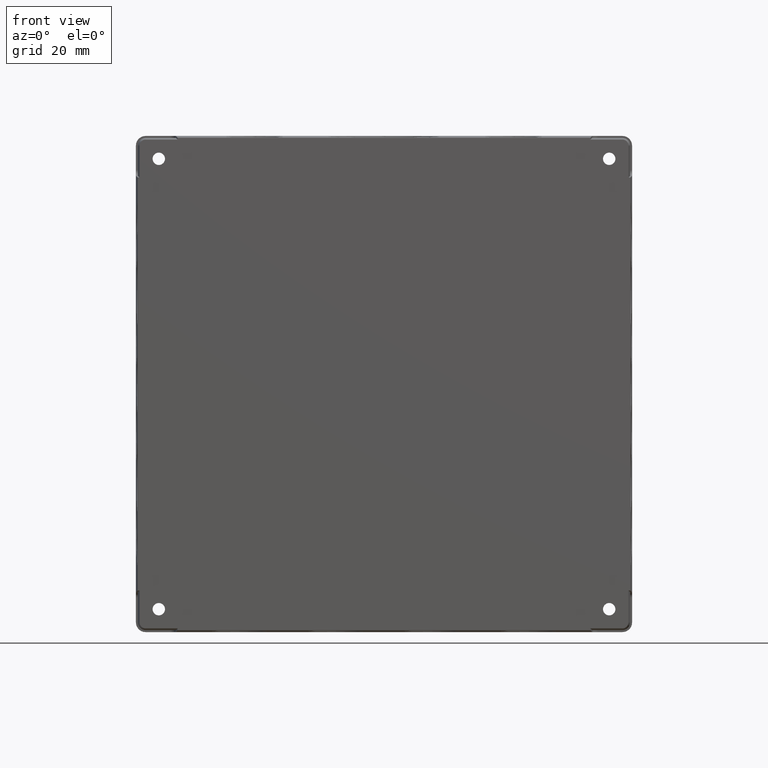
[diagram: clean part render]
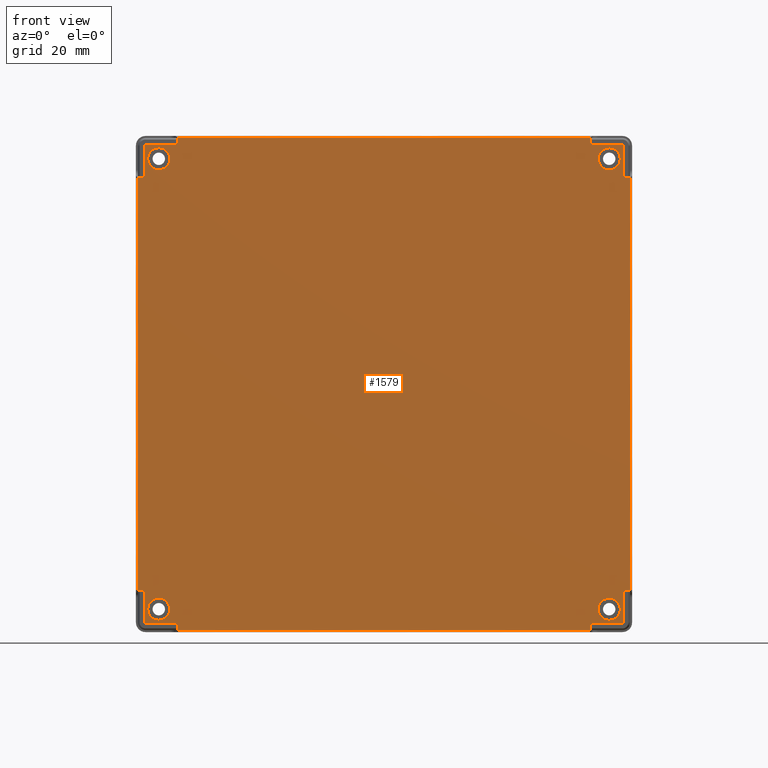
[diagram: same view with one face highlighted and labeled with its STEP entity id]
A machine part, front view. The second image highlights one B-rep face of the part: STEP entity #1579.
In plain terms, the highlighted planar face has unit normal (0, -1, 0).
Its self-contained STEP definition (entity closure, byte-faithful):
#14 = CARTESIAN_POINT ( 'NONE',  ( 88.73911925464683700, -74.00000000000000000, -74.73911925464686600 ) ) ;
#18 = VERTEX_POINT ( 'NONE', #11481 ) ;
#44 = VERTEX_POINT ( 'NONE', #9595 ) ;
#87 = DIRECTION ( 'NONE',  ( -1.000000000000000000, 0.0000000000000000000, 2.523234146875351000E-015 ) ) ;
#95 = EDGE_CURVE ( 'NONE', #3301, #5149, #2571, .T. ) ;
#165 = DIRECTION ( 'NONE',  ( 0.0000000000000000000, -1.000000000000000000, 0.0000000000000000000 ) ) ;
#243 = ORIENTED_EDGE ( 'NONE', *, *, #3337, .F. ) ;
#268 = LINE ( 'NONE', #8691, #2051 ) ;
#290 = LINE ( 'NONE', #6791, #2974 ) ;
#311 = EDGE_CURVE ( 'NONE', #18, #5732, #5859, .T. ) ;
#358 = ORIENTED_EDGE ( 'NONE', *, *, #714, .F. ) ;
#444 = DIRECTION ( 'NONE',  ( -0.0000000000000000000, 1.000000000000000000, -0.0000000000000000000 ) ) ;
#450 = CIRCLE ( 'NONE', #11650, 4.000000000000003600 ) ;
#522 = CARTESIAN_POINT ( 'NONE',  ( 86.54999999999998300, -74.00000000000000000, 86.55000000000001100 ) ) ;
#559 = CARTESIAN_POINT ( 'NONE',  ( 89.40421178348385900, -74.00000000000000000, 74.93911925464686900 ) ) ;
#570 = LINE ( 'NONE', #8277, #11546 ) ;
#574 = LINE ( 'NONE', #9454, #7950 ) ;
#576 = LINE ( 'NONE', #4770, #6271 ) ;
#607 = VECTOR ( 'NONE', #8042, 1000.000000000000000 ) ;
#610 = AXIS2_PLACEMENT_3D ( 'NONE', #8954, #165, #10828 ) ;
#620 = EDGE_CURVE ( 'NONE', #8422, #7485, #5249, .T. ) ;
#631 = DIRECTION ( 'NONE',  ( -0.0000000000000000000, -0.0000000000000000000, -1.000000000000000000 ) ) ;
#638 = CARTESIAN_POINT ( 'NONE',  ( 86.73911925464685200, -74.00000000000000000, -86.55000000000001100 ) ) ;
#693 = VERTEX_POINT ( 'NONE', #10960 ) ;
#697 = LINE ( 'NONE', #8411, #2932 ) ;
#714 = EDGE_CURVE ( 'NONE', #1204, #2340, #6311, .T. ) ;
#747 = DIRECTION ( 'NONE',  ( 1.000000000000000000, 0.0000000000000000000, 2.350000496495478200E-015 ) ) ;
#751 = CARTESIAN_POINT ( 'NONE',  ( -74.73911925464682300, -74.00000000000000000, -88.73911925464686600 ) ) ;
#758 = LINE ( 'NONE', #9892, #11287 ) ;
#771 = ORIENTED_EDGE ( 'NONE', *, *, #12160, .F. ) ;
#787 = EDGE_CURVE ( 'NONE', #2482, #12026, #758, .T. ) ;
#818 = CARTESIAN_POINT ( 'NONE',  ( -74.93911925464681200, -74.00000000000000000, 88.73911925464688000 ) ) ;
#868 = ORIENTED_EDGE ( 'NONE', *, *, #6827, .F. ) ;
#881 = CARTESIAN_POINT ( 'NONE',  ( -81.74999999999997200, -74.00000000000000000, 81.75000000000002800 ) ) ;
#892 = DIRECTION ( 'NONE',  ( 1.000000000000000000, -0.0000000000000000000, 2.523234146875351000E-015 ) ) ;
#945 = LINE ( 'NONE', #8362, #4698 ) ;
#1002 = VERTEX_POINT ( 'NONE', #10293 ) ;
#1004 = VERTEX_POINT ( 'NONE', #2500 ) ;
#1040 = VERTEX_POINT ( 'NONE', #7641 ) ;
#1053 = VERTEX_POINT ( 'NONE', #11658 ) ;
#1089 = EDGE_CURVE ( 'NONE', #6786, #11872, #2388, .T. ) ;
#1094 = VERTEX_POINT ( 'NONE', #2736 ) ;
#1138 = DIRECTION ( 'NONE',  ( -1.000000000000000000, -0.0000000000000000000, -1.175000248247743200E-015 ) ) ;
#1166 = CARTESIAN_POINT ( 'NONE',  ( 86.54999999999998300, -74.00000000000000000, 86.73911925464690900 ) ) ;
#1204 = VERTEX_POINT ( 'NONE', #9976 ) ;
#1239 = CARTESIAN_POINT ( 'NONE',  ( -86.73911925464683700, -74.00000000000000000, -74.73911925464686600 ) ) ;
#1252 = VECTOR ( 'NONE', #8424, 1000.000000000000000 ) ;
#1298 = VECTOR ( 'NONE', #6593, 1000.000000000000000 ) ;
#1328 = VERTEX_POINT ( 'NONE', #12109 ) ;
#1517 = DIRECTION ( 'NONE',  ( 0.0000000000000000000, 0.0000000000000000000, 1.000000000000000000 ) ) ;
#1522 = CARTESIAN_POINT ( 'NONE',  ( -86.55000000000002600, -74.00000000000000000, 88.73911925464689400 ) ) ;
#1568 = EDGE_CURVE ( 'NONE', #693, #4015, #8275, .T. ) ;
#1579 = ADVANCED_FACE ( 'NONE', ( #7664, #8415, #5073, #3251, #2373 ), #7702, .T. ) ;
#1627 = VECTOR ( 'NONE', #8460, 1000.000000000000000 ) ;
#1665 = VERTEX_POINT ( 'NONE', #11387 ) ;
#1713 = VERTEX_POINT ( 'NONE', #11424 ) ;
#1749 = EDGE_CURVE ( 'NONE', #8174, #3700, #9159, .T. ) ;
#1773 = AXIS2_PLACEMENT_3D ( 'NONE', #8304, #2562, #11228 ) ;
#1795 = EDGE_LOOP ( 'NONE', ( #5564, #8465 ) ) ;
#1815 = ORIENTED_EDGE ( 'NONE', *, *, #2259, .F. ) ;
#1857 = DIRECTION ( 'NONE',  ( 0.0000000000000000000, 0.0000000000000000000, -1.000000000000000000 ) ) ;
#1900 = VECTOR ( 'NONE', #7553, 1000.000000000000000 ) ;
#1913 = LINE ( 'NONE', #8922, #10362 ) ;
#1961 = ORIENTED_EDGE ( 'NONE', *, *, #10335, .F. ) ;
#1975 = ORIENTED_EDGE ( 'NONE', *, *, #5195, .F. ) ;
#2020 = VERTEX_POINT ( 'NONE', #1239 ) ;
#2051 = VECTOR ( 'NONE', #8886, 1000.000000000000000 ) ;
#2061 = VECTOR ( 'NONE', #631, 1000.000000000000000 ) ;
#2084 = LINE ( 'NONE', #7449, #1627 ) ;
#2121 = ORIENTED_EDGE ( 'NONE', *, *, #10544, .F. ) ;
#2130 = EDGE_CURVE ( 'NONE', #10771, #1004, #10498, .T. ) ;
#2138 = EDGE_CURVE ( 'NONE', #1053, #11587, #5514, .T. ) ;
#2197 = AXIS2_PLACEMENT_3D ( 'NONE', #10440, #5623, #6596 ) ;
#2259 = EDGE_CURVE ( 'NONE', #1713, #2482, #268, .T. ) ;
#2340 = VERTEX_POINT ( 'NONE', #7891 ) ;
#2346 = CARTESIAN_POINT ( 'NONE',  ( -81.74999999999998600, -74.00000000000000000, -85.75000000000000000 ) ) ;
#2348 = DIRECTION ( 'NONE',  ( 0.0000000000000000000, -1.000000000000000000, 0.0000000000000000000 ) ) ;
#2373 = FACE_OUTER_BOUND ( 'NONE', #9206, .T. ) ;
#2388 = LINE ( 'NONE', #3647, #12317 ) ;
#2456 = VERTEX_POINT ( 'NONE', #559 ) ;
#2482 = VERTEX_POINT ( 'NONE', #4226 ) ;
#2500 = CARTESIAN_POINT ( 'NONE',  ( -86.54999999999998300, -74.00000000000000000, 86.73911925464686600 ) ) ;
#2562 = DIRECTION ( 'NONE',  ( 0.0000000000000000000, -1.000000000000000000, 0.0000000000000000000 ) ) ;
#2571 = LINE ( 'NONE', #1166, #10694 ) ;
#2575 = DIRECTION ( 'NONE',  ( -0.0000000000000000000, 1.000000000000000000, -0.0000000000000000000 ) ) ;
#2604 = CARTESIAN_POINT ( 'NONE',  ( 88.73911925464683700, -74.00000000000000000, -74.93911925464686900 ) ) ;
#2635 = EDGE_CURVE ( 'NONE', #1094, #7485, #6868, .T. ) ;
#2652 = DIRECTION ( 'NONE',  ( 0.0000000000000000000, 0.0000000000000000000, -1.000000000000000000 ) ) ;
#2736 = CARTESIAN_POINT ( 'NONE',  ( -88.73911925464683700, -74.00000000000000000, 74.93911925464689700 ) ) ;
#2744 = CARTESIAN_POINT ( 'NONE',  ( -74.93911925464686900, -74.00000000000000000, -100.3499999999999900 ) ) ;
#2753 = DIRECTION ( 'NONE',  ( -1.000000000000000000, -0.0000000000000000000, -0.0000000000000000000 ) ) ;
#2759 = DIRECTION ( 'NONE',  ( 0.0000000000000000000, -1.000000000000000000, 0.0000000000000000000 ) ) ;
#2770 = DIRECTION ( 'NONE',  ( 0.0000000000000000000, 0.0000000000000000000, -1.000000000000000000 ) ) ;
#2878 = EDGE_CURVE ( 'NONE', #2020, #10049, #697, .T. ) ;
#2911 = VECTOR ( 'NONE', #747, 1000.000000000000000 ) ;
#2926 = CARTESIAN_POINT ( 'NONE',  ( 88.73911925464683700, -74.00000000000000000, -74.73911925464686600 ) ) ;
#2932 = VECTOR ( 'NONE', #2753, 1000.000000000000000 ) ;
#2974 = VECTOR ( 'NONE', #5974, 1000.000000000000000 ) ;
#3010 = CARTESIAN_POINT ( 'NONE',  ( -86.73911925464682300, -74.00000000000000000, 86.55000000000001100 ) ) ;
#3153 = CARTESIAN_POINT ( 'NONE',  ( -86.54999999999961300, -74.00000000000000000, 74.93911925464729500 ) ) ;
#3161 = ORIENTED_EDGE ( 'NONE', *, *, #1749, .F. ) ;
#3194 = ORIENTED_EDGE ( 'NONE', *, *, #10873, .F. ) ;
#3251 = FACE_BOUND ( 'NONE', #11537, .T. ) ;
#3268 = CARTESIAN_POINT ( 'NONE',  ( -86.54999999999995500, -74.00000000000000000, 86.55000000000004000 ) ) ;
#3301 = VERTEX_POINT ( 'NONE', #10409 ) ;
#3337 = EDGE_CURVE ( 'NONE', #11500, #6992, #10178, .T. ) ;
#3354 = DIRECTION ( 'NONE',  ( 0.0000000000000000000, -1.000000000000000000, 0.0000000000000000000 ) ) ;
#3429 = DIRECTION ( 'NONE',  ( -0.0000000000000000000, -0.0000000000000000000, 1.000000000000000000 ) ) ;
#3446 = EDGE_LOOP ( 'NONE', ( #1961, #358 ) ) ;
#3460 = CIRCLE ( 'NONE', #6019, 0.1891192546468606400 ) ;
#3522 = EDGE_CURVE ( 'NONE', #10535, #11510, #5019, .T. ) ;
#3547 = LINE ( 'NONE', #9815, #10939 ) ;
#3575 = DIRECTION ( 'NONE',  ( 0.0000000000000000000, 0.0000000000000000000, 1.000000000000000000 ) ) ;
#3623 = CARTESIAN_POINT ( 'NONE',  ( -74.93911925464686900, -74.00000000000000000, -89.40421178348384500 ) ) ;
#3647 = CARTESIAN_POINT ( 'NONE',  ( 86.54999999999995500, -74.00000000000000000, -74.93911925464688300 ) ) ;
#3652 = CARTESIAN_POINT ( 'NONE',  ( 86.55000000000002600, -74.00000000000000000, 88.73911925464689400 ) ) ;
#3700 = VERTEX_POINT ( 'NONE', #11492 ) ;
#3732 = CARTESIAN_POINT ( 'NONE',  ( 74.93911925464682600, -74.00000000000000000, -88.73911925464686600 ) ) ;
#3772 = DIRECTION ( 'NONE',  ( 1.000000000000000000, -0.0000000000000000000, -2.350000496495478200E-015 ) ) ;
#3891 = CIRCLE ( 'NONE', #12366, 0.1891192546468745100 ) ;
#3982 = DIRECTION ( 'NONE',  ( -1.000000000000000000, 0.0000000000000000000, 1.175000248247743200E-015 ) ) ;
#4015 = VERTEX_POINT ( 'NONE', #9885 ) ;
#4048 = VERTEX_POINT ( 'NONE', #12102 ) ;
#4158 = CIRCLE ( 'NONE', #7341, 4.000000000000003600 ) ;
#4159 = CARTESIAN_POINT ( 'NONE',  ( 74.73911925464682300, -74.00000000000000000, -88.73911925464686600 ) ) ;
#4162 = DIRECTION ( 'NONE',  ( 1.000000000000000000, -0.0000000000000000000, 2.350000496495486400E-015 ) ) ;
#4226 = CARTESIAN_POINT ( 'NONE',  ( 86.73911925464683700, -74.00000000000000000, 74.73911925464686600 ) ) ;
#4228 = ORIENTED_EDGE ( 'NONE', *, *, #1089, .T. ) ;
#4289 = AXIS2_PLACEMENT_3D ( 'NONE', #6320, #6410, #5433 ) ;
#4292 = DIRECTION ( 'NONE',  ( 0.0000000000000000000, 0.0000000000000000000, 1.000000000000000000 ) ) ;
#4302 = ORIENTED_EDGE ( 'NONE', *, *, #7510, .F. ) ;
#4308 = CARTESIAN_POINT ( 'NONE',  ( -86.55000000000001100, -74.00000000000000000, 89.40421178348384500 ) ) ;
#4367 = DIRECTION ( 'NONE',  ( 0.0000000000000000000, 0.0000000000000000000, -1.000000000000000000 ) ) ;
#4392 = CARTESIAN_POINT ( 'NONE',  ( 74.93911925464682600, -74.00000000000000000, -86.54999999999998300 ) ) ;
#4441 = DIRECTION ( 'NONE',  ( 4.700000992991000500E-015, -0.0000000000000000000, -1.000000000000000000 ) ) ;
#4564 = CARTESIAN_POINT ( 'NONE',  ( -88.73911925464683700, -74.00000000000000000, 74.73911925464686600 ) ) ;
#4595 = VECTOR ( 'NONE', #3772, 1000.000000000000000 ) ;
#4632 = ORIENTED_EDGE ( 'NONE', *, *, #12471, .F. ) ;
#4654 = EDGE_CURVE ( 'NONE', #10688, #1040, #5306, .T. ) ;
#4692 = ORIENTED_EDGE ( 'NONE', *, *, #3522, .F. ) ;
#4698 = VECTOR ( 'NONE', #11284, 1000.000000000000000 ) ;
#4764 = LINE ( 'NONE', #12332, #1900 ) ;
#4770 = CARTESIAN_POINT ( 'NONE',  ( -86.54999999999998300, -74.00000000000000000, -74.93911925464685500 ) ) ;
#4783 = DIRECTION ( 'NONE',  ( -1.000000000000000000, 0.0000000000000000000, 0.0000000000000000000 ) ) ;
#4798 = LINE ( 'NONE', #6984, #607 ) ;
#4812 = VECTOR ( 'NONE', #9962, 1000.000000000000000 ) ;
#4927 = AXIS2_PLACEMENT_3D ( 'NONE', #881, #11399, #2770 ) ;
#4964 = VECTOR ( 'NONE', #1857, 1000.000000000000000 ) ;
#4972 = ORIENTED_EDGE ( 'NONE', *, *, #9982, .F. ) ;
#5019 = CIRCLE ( 'NONE', #11311, 0.1891192546468606400 ) ;
#5073 = FACE_BOUND ( 'NONE', #1795, .T. ) ;
#5095 = ORIENTED_EDGE ( 'NONE', *, *, #5878, .F. ) ;
#5149 = VERTEX_POINT ( 'NONE', #10331 ) ;
#5188 = CARTESIAN_POINT ( 'NONE',  ( -86.54999999999998300, -74.00000000000000000, 86.73911925464689400 ) ) ;
#5195 = EDGE_CURVE ( 'NONE', #11587, #7476, #945, .T. ) ;
#5224 = EDGE_CURVE ( 'NONE', #11500, #11787, #6974, .T. ) ;
#5239 = CARTESIAN_POINT ( 'NONE',  ( -81.74999999999997200, -74.00000000000000000, 81.75000000000002800 ) ) ;
#5249 = LINE ( 'NONE', #10306, #8891 ) ;
#5306 = CIRCLE ( 'NONE', #4289, 3.999999999999976000 ) ;
#5351 = VECTOR ( 'NONE', #11952, 1000.000000000000000 ) ;
#5433 = DIRECTION ( 'NONE',  ( 0.0000000000000000000, 0.0000000000000000000, -1.000000000000000000 ) ) ;
#5514 = LINE ( 'NONE', #1522, #5351 ) ;
#5564 = ORIENTED_EDGE ( 'NONE', *, *, #6177, .F. ) ;
#5623 = DIRECTION ( 'NONE',  ( 0.0000000000000000000, -1.000000000000000000, 0.0000000000000000000 ) ) ;
#5681 = DIRECTION ( 'NONE',  ( 0.0000000000000000000, 0.0000000000000000000, -1.000000000000000000 ) ) ;
#5732 = VERTEX_POINT ( 'NONE', #638 ) ;
#5820 = LINE ( 'NONE', #8260, #2061 ) ;
#5859 = LINE ( 'NONE', #7958, #4812 ) ;
#5868 = LINE ( 'NONE', #2744, #4964 ) ;
#5873 = AXIS2_PLACEMENT_3D ( 'NONE', #9098, #2348, #11011 ) ;
#5878 = EDGE_CURVE ( 'NONE', #11343, #2456, #7645, .T. ) ;
#5974 = DIRECTION ( 'NONE',  ( 4.700000992991000500E-015, 0.0000000000000000000, 1.000000000000000000 ) ) ;
#6013 = EDGE_LOOP ( 'NONE', ( #9577, #4632 ) ) ;
#6019 = AXIS2_PLACEMENT_3D ( 'NONE', #11197, #6351, #1517 ) ;
#6040 = VECTOR ( 'NONE', #8569, 1000.000000000000000 ) ;
#6177 = EDGE_CURVE ( 'NONE', #10933, #7567, #10497, .T. ) ;
#6221 = DIRECTION ( 'NONE',  ( 0.0000000000000000000, 0.0000000000000000000, -1.000000000000000000 ) ) ;
#6269 = LINE ( 'NONE', #14, #7198 ) ;
#6271 = VECTOR ( 'NONE', #87, 1000.000000000000000 ) ;
#6295 = VERTEX_POINT ( 'NONE', #3732 ) ;
#6311 = CIRCLE ( 'NONE', #5873, 4.000000000000003600 ) ;
#6320 = CARTESIAN_POINT ( 'NONE',  ( 81.74999999999998600, -74.00000000000000000, -81.75000000000000000 ) ) ;
#6350 = CIRCLE ( 'NONE', #610, 3.999999999999989800 ) ;
#6351 = DIRECTION ( 'NONE',  ( -0.0000000000000000000, 1.000000000000000000, -0.0000000000000000000 ) ) ;
#6410 = DIRECTION ( 'NONE',  ( 0.0000000000000000000, -1.000000000000000000, 0.0000000000000000000 ) ) ;
#6416 = EDGE_CURVE ( 'NONE', #8943, #6295, #7018, .T. ) ;
#6428 = ORIENTED_EDGE ( 'NONE', *, *, #95, .F. ) ;
#6502 = ORIENTED_EDGE ( 'NONE', *, *, #7801, .F. ) ;
#6569 = CARTESIAN_POINT ( 'NONE',  ( 89.40421178348384500, -74.00000000000000000, -86.54999999999998300 ) ) ;
#6576 = CARTESIAN_POINT ( 'NONE',  ( -89.40421178348385900, -74.00000000000000000, -74.93911925464684000 ) ) ;
#6593 = DIRECTION ( 'NONE',  ( -1.000000000000000000, 0.0000000000000000000, -2.523234146875351000E-015 ) ) ;
#6596 = DIRECTION ( 'NONE',  ( 0.0000000000000000000, -0.0000000000000000000, -1.000000000000000000 ) ) ;
#6635 = CARTESIAN_POINT ( 'NONE',  ( -89.34999999999992300, -74.00000000000000000, 74.93911925464689700 ) ) ;
#6667 = VECTOR ( 'NONE', #9392, 1000.000000000000000 ) ;
#6786 = VERTEX_POINT ( 'NONE', #2604 ) ;
#6791 = CARTESIAN_POINT ( 'NONE',  ( 88.73911925464683700, -74.00000000000000000, 74.73911925464686600 ) ) ;
#6827 = EDGE_CURVE ( 'NONE', #1040, #10688, #6852, .T. ) ;
#6830 = ORIENTED_EDGE ( 'NONE', *, *, #12230, .F. ) ;
#6852 = CIRCLE ( 'NONE', #1773, 3.999999999999976000 ) ;
#6868 = LINE ( 'NONE', #6635, #1298 ) ;
#6894 = EDGE_CURVE ( 'NONE', #1094, #1665, #11222, .T. ) ;
#6974 = LINE ( 'NONE', #10496, #6040 ) ;
#6984 = CARTESIAN_POINT ( 'NONE',  ( -74.73911925464682300, -74.00000000000000000, 88.73911925464686600 ) ) ;
#6992 = VERTEX_POINT ( 'NONE', #12272 ) ;
#7008 = DIRECTION ( 'NONE',  ( 1.000000000000000000, 0.0000000000000000000, -2.523234146875351000E-015 ) ) ;
#7018 = LINE ( 'NONE', #7468, #4595 ) ;
#7050 = VECTOR ( 'NONE', #1138, 1000.000000000000000 ) ;
#7060 = CARTESIAN_POINT ( 'NONE',  ( -74.93911925464686900, -74.00000000000000000, -88.73911925464685200 ) ) ;
#7135 = LINE ( 'NONE', #5188, #1252 ) ;
#7165 = DIRECTION ( 'NONE',  ( -0.0000000000000000000, 1.000000000000000000, -0.0000000000000000000 ) ) ;
#7184 = CARTESIAN_POINT ( 'NONE',  ( 74.93911925464684000, -74.00000000000000000, 89.40421178348384500 ) ) ;
#7198 = VECTOR ( 'NONE', #4783, 1000.000000000000000 ) ;
#7341 = AXIS2_PLACEMENT_3D ( 'NONE', #5239, #11988, #6221 ) ;
#7358 = CARTESIAN_POINT ( 'NONE',  ( -74.93911925464681200, -74.00000000000000000, 89.40421178348384500 ) ) ;
#7449 = CARTESIAN_POINT ( 'NONE',  ( -88.73911925464683700, -74.00000000000000000, -74.73911925464686600 ) ) ;
#7468 = CARTESIAN_POINT ( 'NONE',  ( 86.55000000000002600, -74.00000000000000000, -88.73911925464689400 ) ) ;
#7476 = VERTEX_POINT ( 'NONE', #7358 ) ;
#7485 = VERTEX_POINT ( 'NONE', #8332 ) ;
#7510 = EDGE_CURVE ( 'NONE', #9957, #8174, #8515, .T. ) ;
#7553 = DIRECTION ( 'NONE',  ( -4.700000992991000500E-015, -0.0000000000000000000, 1.000000000000000000 ) ) ;
#7563 = DIRECTION ( 'NONE',  ( 0.0000000000000000000, 0.0000000000000000000, 1.000000000000000000 ) ) ;
#7567 = VERTEX_POINT ( 'NONE', #11420 ) ;
#7586 = ORIENTED_EDGE ( 'NONE', *, *, #11378, .F. ) ;
#7620 = VECTOR ( 'NONE', #8570, 1000.000000000000000 ) ;
#7641 = CARTESIAN_POINT ( 'NONE',  ( 81.74999999999998600, -74.00000000000000000, -85.74999999999998600 ) ) ;
#7645 = LINE ( 'NONE', #3153, #11237 ) ;
#7652 = LINE ( 'NONE', #11991, #8700 ) ;
#7664 = FACE_BOUND ( 'NONE', #6013, .T. ) ;
#7702 = PLANE ( 'NONE',  #2197 ) ;
#7794 = EDGE_CURVE ( 'NONE', #7476, #11787, #10742, .T. ) ;
#7801 = EDGE_CURVE ( 'NONE', #1004, #4048, #7135, .T. ) ;
#7891 = CARTESIAN_POINT ( 'NONE',  ( 81.75000000000000000, -74.00000000000000000, 77.74999999999997200 ) ) ;
#7950 = VECTOR ( 'NONE', #8611, 1000.000000000000000 ) ;
#7955 = VERTEX_POINT ( 'NONE', #2926 ) ;
#7958 = CARTESIAN_POINT ( 'NONE',  ( 86.73911925464683700, -74.00000000000000000, -74.73911925464686600 ) ) ;
#8042 = DIRECTION ( 'NONE',  ( -0.0000000000000000000, -0.0000000000000000000, 1.000000000000000000 ) ) ;
#8046 = ORIENTED_EDGE ( 'NONE', *, *, #10154, .F. ) ;
#8075 = ORIENTED_EDGE ( 'NONE', *, *, #2138, .F. ) ;
#8096 = ORIENTED_EDGE ( 'NONE', *, *, #4654, .F. ) ;
#8174 = VERTEX_POINT ( 'NONE', #9915 ) ;
#8196 = CARTESIAN_POINT ( 'NONE',  ( -81.74999999999998600, -74.00000000000000000, -81.75000000000000000 ) ) ;
#8203 = CARTESIAN_POINT ( 'NONE',  ( -86.73911925464683700, -74.00000000000000000, 74.73911925464686600 ) ) ;
#8214 = CARTESIAN_POINT ( 'NONE',  ( -88.73911925464686600, -74.00000000000000000, -74.93911925464685500 ) ) ;
#8260 = CARTESIAN_POINT ( 'NONE',  ( 74.73911925464682300, -74.00000000000000000, -88.73911925464686600 ) ) ;
#8275 = CIRCLE ( 'NONE', #4927, 4.000000000000003600 ) ;
#8277 = CARTESIAN_POINT ( 'NONE',  ( -86.73911925464683700, -74.00000000000000000, -74.73911925464686600 ) ) ;
#8296 = EDGE_CURVE ( 'NONE', #6295, #1328, #10137, .T. ) ;
#8304 = CARTESIAN_POINT ( 'NONE',  ( 81.74999999999998600, -74.00000000000000000, -81.75000000000000000 ) ) ;
#8332 = CARTESIAN_POINT ( 'NONE',  ( -89.40421178348385900, -74.00000000000000000, 74.93911925464689700 ) ) ;
#8357 = CARTESIAN_POINT ( 'NONE',  ( 74.93911925464682600, -74.00000000000000000, 88.73911925464686600 ) ) ;
#8362 = CARTESIAN_POINT ( 'NONE',  ( -74.93911925464681200, -74.00000000000000000, -86.54999999999998300 ) ) ;
#8381 = VECTOR ( 'NONE', #4441, 1000.000000000000000 ) ;
#8411 = CARTESIAN_POINT ( 'NONE',  ( -88.73911925464683700, -74.00000000000000000, -74.73911925464686600 ) ) ;
#8415 = FACE_BOUND ( 'NONE', #3446, .T. ) ;
#8422 = VERTEX_POINT ( 'NONE', #6576 ) ;
#8424 = DIRECTION ( 'NONE',  ( 1.000000000000000000, 0.0000000000000000000, -1.175000248247743200E-015 ) ) ;
#8455 = CARTESIAN_POINT ( 'NONE',  ( -86.55000000000002600, -74.00000000000000000, -88.73911925464689400 ) ) ;
#8460 = DIRECTION ( 'NONE',  ( -4.700000992991000500E-015, 0.0000000000000000000, -1.000000000000000000 ) ) ;
#8465 = ORIENTED_EDGE ( 'NONE', *, *, #8716, .F. ) ;
#8515 = LINE ( 'NONE', #8455, #2911 ) ;
#8564 = CARTESIAN_POINT ( 'NONE',  ( -86.54999999999998300, -74.00000000000000000, -86.73911925464689400 ) ) ;
#8569 = DIRECTION ( 'NONE',  ( 0.0000000000000000000, -0.0000000000000000000, 1.000000000000000000 ) ) ;
#8570 = DIRECTION ( 'NONE',  ( -1.000000000000000000, 0.0000000000000000000, -2.350000496495478200E-015 ) ) ;
#8611 = DIRECTION ( 'NONE',  ( -1.000000000000000000, 0.0000000000000000000, 0.0000000000000000000 ) ) ;
#8691 = CARTESIAN_POINT ( 'NONE',  ( 86.73911925464683700, -74.00000000000000000, 74.73911925464686600 ) ) ;
#8700 = VECTOR ( 'NONE', #4367, 1000.000000000000000 ) ;
#8702 = VECTOR ( 'NONE', #5681, 1000.000000000000000 ) ;
#8706 = CARTESIAN_POINT ( 'NONE',  ( 81.75000000000000000, -74.00000000000000000, 81.74999999999997200 ) ) ;
#8716 = EDGE_CURVE ( 'NONE', #7567, #10933, #6350, .T. ) ;
#8838 = ORIENTED_EDGE ( 'NONE', *, *, #11575, .F. ) ;
#8845 = LINE ( 'NONE', #8564, #7050 ) ;
#8886 = DIRECTION ( 'NONE',  ( -0.0000000000000000000, -0.0000000000000000000, -1.000000000000000000 ) ) ;
#8891 = VECTOR ( 'NONE', #3575, 1000.000000000000000 ) ;
#8906 = ORIENTED_EDGE ( 'NONE', *, *, #620, .F. ) ;
#8922 = CARTESIAN_POINT ( 'NONE',  ( -88.73911925464683700, -74.00000000000000000, 74.73911925464686600 ) ) ;
#8943 = VERTEX_POINT ( 'NONE', #4159 ) ;
#8954 = CARTESIAN_POINT ( 'NONE',  ( -81.74999999999998600, -74.00000000000000000, -81.75000000000000000 ) ) ;
#9057 = EDGE_CURVE ( 'NONE', #9957, #11085, #5868, .T. ) ;
#9060 = VERTEX_POINT ( 'NONE', #10459 ) ;
#9098 = CARTESIAN_POINT ( 'NONE',  ( 81.75000000000000000, -74.00000000000000000, 81.74999999999997200 ) ) ;
#9146 = DIRECTION ( 'NONE',  ( 0.0000000000000000000, 0.0000000000000000000, -1.000000000000000000 ) ) ;
#9159 = LINE ( 'NONE', #751, #10215 ) ;
#9206 = EDGE_LOOP ( 'NONE', ( #8838, #12311, #4228, #771, #5095, #10910, #11472, #1815, #9859, #6428, #11157, #243, #10016, #9483, #1975, #8075, #4972, #6502, #11401, #2121, #3194, #12326, #10218, #8906, #10755, #8046, #9395, #7586, #4692, #11282, #3161, #4302, #9834, #9429, #11330, #11353, #11063, #6830, #11396, #12023 ) ) ;
#9214 = CARTESIAN_POINT ( 'NONE',  ( -88.73911925464683700, -74.00000000000000000, -74.73911925464686600 ) ) ;
#9235 = CARTESIAN_POINT ( 'NONE',  ( 88.73911925464683700, -74.00000000000000000, 74.93911925464686900 ) ) ;
#9292 = CARTESIAN_POINT ( 'NONE',  ( -86.55000000000001100, -74.00000000000000000, -86.73911925464685200 ) ) ;
#9392 = DIRECTION ( 'NONE',  ( 1.000000000000000000, 0.0000000000000000000, 0.0000000000000000000 ) ) ;
#9395 = ORIENTED_EDGE ( 'NONE', *, *, #2878, .F. ) ;
#9429 = ORIENTED_EDGE ( 'NONE', *, *, #12097, .F. ) ;
#9454 = CARTESIAN_POINT ( 'NONE',  ( -86.55000000000001100, -74.00000000000000000, -89.40421178348384500 ) ) ;
#9468 = LINE ( 'NONE', #8203, #9766 ) ;
#9474 = AXIS2_PLACEMENT_3D ( 'NONE', #3268, #444, #9990 ) ;
#9483 = ORIENTED_EDGE ( 'NONE', *, *, #7794, .F. ) ;
#9492 = CARTESIAN_POINT ( 'NONE',  ( 88.73911925464683700, -74.00000000000000000, 74.73911925464686600 ) ) ;
#9503 = DIRECTION ( 'NONE',  ( 0.0000000000000000000, 0.0000000000000000000, -1.000000000000000000 ) ) ;
#9504 = EDGE_CURVE ( 'NONE', #5149, #1713, #3891, .T. ) ;
#9577 = ORIENTED_EDGE ( 'NONE', *, *, #1568, .F. ) ;
#9595 = CARTESIAN_POINT ( 'NONE',  ( 74.73911925464682300, -74.00000000000000000, -86.73911925464688000 ) ) ;
#9766 = VECTOR ( 'NONE', #4292, 1000.000000000000000 ) ;
#9815 = CARTESIAN_POINT ( 'NONE',  ( 86.54999999999998300, -74.00000000000000000, -86.73911925464689400 ) ) ;
#9834 = ORIENTED_EDGE ( 'NONE', *, *, #9057, .T. ) ;
#9840 = AXIS2_PLACEMENT_3D ( 'NONE', #8196, #3354, #11080 ) ;
#9859 = ORIENTED_EDGE ( 'NONE', *, *, #9504, .F. ) ;
#9885 = CARTESIAN_POINT ( 'NONE',  ( -81.74999999999997200, -74.00000000000000000, 85.75000000000002800 ) ) ;
#9892 = CARTESIAN_POINT ( 'NONE',  ( 88.73911925464683700, -74.00000000000000000, 74.73911925464686600 ) ) ;
#9915 = CARTESIAN_POINT ( 'NONE',  ( -74.73911925464682300, -74.00000000000000000, -88.73911925464686600 ) ) ;
#9957 = VERTEX_POINT ( 'NONE', #7060 ) ;
#9962 = DIRECTION ( 'NONE',  ( 0.0000000000000000000, 0.0000000000000000000, -1.000000000000000000 ) ) ;
#9976 = CARTESIAN_POINT ( 'NONE',  ( 81.75000000000000000, -74.00000000000000000, 85.74999999999998600 ) ) ;
#9982 = EDGE_CURVE ( 'NONE', #4048, #1053, #4798, .T. ) ;
#9990 = DIRECTION ( 'NONE',  ( 0.0000000000000000000, 0.0000000000000000000, 1.000000000000000000 ) ) ;
#10016 = ORIENTED_EDGE ( 'NONE', *, *, #5224, .T. ) ;
#10049 = VERTEX_POINT ( 'NONE', #9214 ) ;
#10137 = LINE ( 'NONE', #4392, #11334 ) ;
#10143 = VERTEX_POINT ( 'NONE', #8214 ) ;
#10154 = EDGE_CURVE ( 'NONE', #10049, #10143, #2084, .T. ) ;
#10178 = LINE ( 'NONE', #3652, #7620 ) ;
#10215 = VECTOR ( 'NONE', #7563, 1000.000000000000000 ) ;
#10218 = ORIENTED_EDGE ( 'NONE', *, *, #2635, .T. ) ;
#10293 = CARTESIAN_POINT ( 'NONE',  ( 86.54999999999998300, -74.00000000000000000, -86.73911925464689400 ) ) ;
#10306 = CARTESIAN_POINT ( 'NONE',  ( -89.40421178348384500, -74.00000000000000000, -86.54999999999998300 ) ) ;
#10331 = CARTESIAN_POINT ( 'NONE',  ( 86.54999999999998300, -74.00000000000000000, 86.73911925464689400 ) ) ;
#10335 = EDGE_CURVE ( 'NONE', #2340, #1204, #450, .T. ) ;
#10362 = VECTOR ( 'NONE', #11771, 1000.000000000000000 ) ;
#10409 = CARTESIAN_POINT ( 'NONE',  ( 74.73911925464682300, -74.00000000000000000, 86.73911925464688000 ) ) ;
#10440 = CARTESIAN_POINT ( 'NONE',  ( -86.55000000000001100, -74.00000000000000000, -86.54999999999998300 ) ) ;
#10441 = EDGE_CURVE ( 'NONE', #12026, #11343, #290, .T. ) ;
#10459 = CARTESIAN_POINT ( 'NONE',  ( -86.73911925464683700, -74.00000000000000000, 74.73911925464688000 ) ) ;
#10496 = CARTESIAN_POINT ( 'NONE',  ( 74.93911925464684000, -74.00000000000000000, 86.55000000000001100 ) ) ;
#10497 = CIRCLE ( 'NONE', #9840, 3.999999999999989800 ) ;
#10498 = CIRCLE ( 'NONE', #9474, 0.1891192546468606400 ) ;
#10504 = LINE ( 'NONE', #6569, #8702 ) ;
#10535 = VERTEX_POINT ( 'NONE', #9292 ) ;
#10544 = EDGE_CURVE ( 'NONE', #9060, #10771, #9468, .T. ) ;
#10688 = VERTEX_POINT ( 'NONE', #11404 ) ;
#10694 = VECTOR ( 'NONE', #4162, 1000.000000000000000 ) ;
#10742 = LINE ( 'NONE', #4308, #6667 ) ;
#10755 = ORIENTED_EDGE ( 'NONE', *, *, #11164, .F. ) ;
#10771 = VERTEX_POINT ( 'NONE', #3010 ) ;
#10828 = DIRECTION ( 'NONE',  ( 0.0000000000000000000, 0.0000000000000000000, -1.000000000000000000 ) ) ;
#10855 = DIRECTION ( 'NONE',  ( 1.000000000000000000, -0.0000000000000000000, -0.0000000000000000000 ) ) ;
#10873 = EDGE_CURVE ( 'NONE', #1665, #9060, #1913, .T. ) ;
#10910 = ORIENTED_EDGE ( 'NONE', *, *, #10441, .F. ) ;
#10933 = VERTEX_POINT ( 'NONE', #2346 ) ;
#10939 = VECTOR ( 'NONE', #3982, 1000.000000000000000 ) ;
#10960 = CARTESIAN_POINT ( 'NONE',  ( -81.74999999999997200, -74.00000000000000000, 77.75000000000002800 ) ) ;
#11011 = DIRECTION ( 'NONE',  ( 0.0000000000000000000, 0.0000000000000000000, -1.000000000000000000 ) ) ;
#11016 = EDGE_CURVE ( 'NONE', #44, #8943, #5820, .T. ) ;
#11063 = ORIENTED_EDGE ( 'NONE', *, *, #11016, .F. ) ;
#11080 = DIRECTION ( 'NONE',  ( 0.0000000000000000000, 0.0000000000000000000, -1.000000000000000000 ) ) ;
#11085 = VERTEX_POINT ( 'NONE', #3623 ) ;
#11129 = DIRECTION ( 'NONE',  ( 0.0000000000000000000, 0.0000000000000000000, -1.000000000000000000 ) ) ;
#11157 = ORIENTED_EDGE ( 'NONE', *, *, #11361, .F. ) ;
#11164 = EDGE_CURVE ( 'NONE', #10143, #8422, #576, .T. ) ;
#11197 = CARTESIAN_POINT ( 'NONE',  ( 86.54999999999998300, -74.00000000000000000, -86.55000000000001100 ) ) ;
#11201 = CARTESIAN_POINT ( 'NONE',  ( -86.55000000000001100, -74.00000000000000000, -86.54999999999998300 ) ) ;
#11222 = LINE ( 'NONE', #4564, #8381 ) ;
#11228 = DIRECTION ( 'NONE',  ( 0.0000000000000000000, 0.0000000000000000000, -1.000000000000000000 ) ) ;
#11237 = VECTOR ( 'NONE', #7008, 1000.000000000000000 ) ;
#11282 = ORIENTED_EDGE ( 'NONE', *, *, #11696, .F. ) ;
#11284 = DIRECTION ( 'NONE',  ( 0.0000000000000000000, 0.0000000000000000000, 1.000000000000000000 ) ) ;
#11287 = VECTOR ( 'NONE', #10855, 1000.000000000000000 ) ;
#11311 = AXIS2_PLACEMENT_3D ( 'NONE', #11201, #2575, #2652 ) ;
#11330 = ORIENTED_EDGE ( 'NONE', *, *, #8296, .F. ) ;
#11334 = VECTOR ( 'NONE', #11129, 1000.000000000000000 ) ;
#11343 = VERTEX_POINT ( 'NONE', #9235 ) ;
#11353 = ORIENTED_EDGE ( 'NONE', *, *, #6416, .F. ) ;
#11361 = EDGE_CURVE ( 'NONE', #6992, #3301, #7652, .T. ) ;
#11378 = EDGE_CURVE ( 'NONE', #11510, #2020, #570, .T. ) ;
#11387 = CARTESIAN_POINT ( 'NONE',  ( -88.73911925464683700, -74.00000000000000000, 74.73911925464685200 ) ) ;
#11396 = ORIENTED_EDGE ( 'NONE', *, *, #12459, .F. ) ;
#11399 = DIRECTION ( 'NONE',  ( 0.0000000000000000000, -1.000000000000000000, 0.0000000000000000000 ) ) ;
#11401 = ORIENTED_EDGE ( 'NONE', *, *, #2130, .F. ) ;
#11404 = CARTESIAN_POINT ( 'NONE',  ( 81.74999999999998600, -74.00000000000000000, -77.75000000000002800 ) ) ;
#11420 = CARTESIAN_POINT ( 'NONE',  ( -81.74999999999998600, -74.00000000000000000, -77.75000000000001400 ) ) ;
#11424 = CARTESIAN_POINT ( 'NONE',  ( 86.73911925464683700, -74.00000000000000000, 86.54999999999995500 ) ) ;
#11472 = ORIENTED_EDGE ( 'NONE', *, *, #787, .F. ) ;
#11481 = CARTESIAN_POINT ( 'NONE',  ( 86.73911925464680900, -74.00000000000000000, -74.73911925464686600 ) ) ;
#11492 = CARTESIAN_POINT ( 'NONE',  ( -74.73911925464682300, -74.00000000000000000, -86.73911925464688000 ) ) ;
#11500 = VERTEX_POINT ( 'NONE', #8357 ) ;
#11510 = VERTEX_POINT ( 'NONE', #12194 ) ;
#11537 = EDGE_LOOP ( 'NONE', ( #868, #8096 ) ) ;
#11546 = VECTOR ( 'NONE', #3429, 1000.000000000000000 ) ;
#11575 = EDGE_CURVE ( 'NONE', #7955, #18, #6269, .T. ) ;
#11587 = VERTEX_POINT ( 'NONE', #818 ) ;
#11650 = AXIS2_PLACEMENT_3D ( 'NONE', #8706, #2759, #9503 ) ;
#11658 = CARTESIAN_POINT ( 'NONE',  ( -74.73911925464682300, -74.00000000000000000, 88.73911925464686600 ) ) ;
#11696 = EDGE_CURVE ( 'NONE', #3700, #10535, #8845, .T. ) ;
#11771 = DIRECTION ( 'NONE',  ( 1.000000000000000000, 0.0000000000000000000, 0.0000000000000000000 ) ) ;
#11787 = VERTEX_POINT ( 'NONE', #7184 ) ;
#11872 = VERTEX_POINT ( 'NONE', #12043 ) ;
#11952 = DIRECTION ( 'NONE',  ( -1.000000000000000000, -0.0000000000000000000, 2.350000496495478200E-015 ) ) ;
#11988 = DIRECTION ( 'NONE',  ( 0.0000000000000000000, -1.000000000000000000, 0.0000000000000000000 ) ) ;
#11991 = CARTESIAN_POINT ( 'NONE',  ( 74.73911925464682300, -74.00000000000000000, 88.73911925464686600 ) ) ;
#12023 = ORIENTED_EDGE ( 'NONE', *, *, #311, .F. ) ;
#12026 = VERTEX_POINT ( 'NONE', #9492 ) ;
#12043 = CARTESIAN_POINT ( 'NONE',  ( 89.40421178348384500, -74.00000000000000000, -74.93911925464686900 ) ) ;
#12097 = EDGE_CURVE ( 'NONE', #1328, #11085, #574, .T. ) ;
#12102 = CARTESIAN_POINT ( 'NONE',  ( -74.73911925464682300, -74.00000000000000000, 86.73911925464689400 ) ) ;
#12109 = CARTESIAN_POINT ( 'NONE',  ( 74.93911925464684000, -74.00000000000000000, -89.40421178348384500 ) ) ;
#12139 = EDGE_CURVE ( 'NONE', #6786, #7955, #4764, .T. ) ;
#12160 = EDGE_CURVE ( 'NONE', #2456, #11872, #10504, .T. ) ;
#12194 = CARTESIAN_POINT ( 'NONE',  ( -86.73911925464683700, -74.00000000000000000, -86.55000000000001100 ) ) ;
#12230 = EDGE_CURVE ( 'NONE', #1002, #44, #3547, .T. ) ;
#12272 = CARTESIAN_POINT ( 'NONE',  ( 74.73911925464682300, -74.00000000000000000, 88.73911925464686600 ) ) ;
#12311 = ORIENTED_EDGE ( 'NONE', *, *, #12139, .F. ) ;
#12317 = VECTOR ( 'NONE', #892, 1000.000000000000000 ) ;
#12326 = ORIENTED_EDGE ( 'NONE', *, *, #6894, .F. ) ;
#12332 = CARTESIAN_POINT ( 'NONE',  ( 88.73911925464683700, -74.00000000000000000, -74.73911925464686600 ) ) ;
#12366 = AXIS2_PLACEMENT_3D ( 'NONE', #522, #7165, #9146 ) ;
#12459 = EDGE_CURVE ( 'NONE', #5732, #1002, #3460, .T. ) ;
#12471 = EDGE_CURVE ( 'NONE', #4015, #693, #4158, .T. ) ;